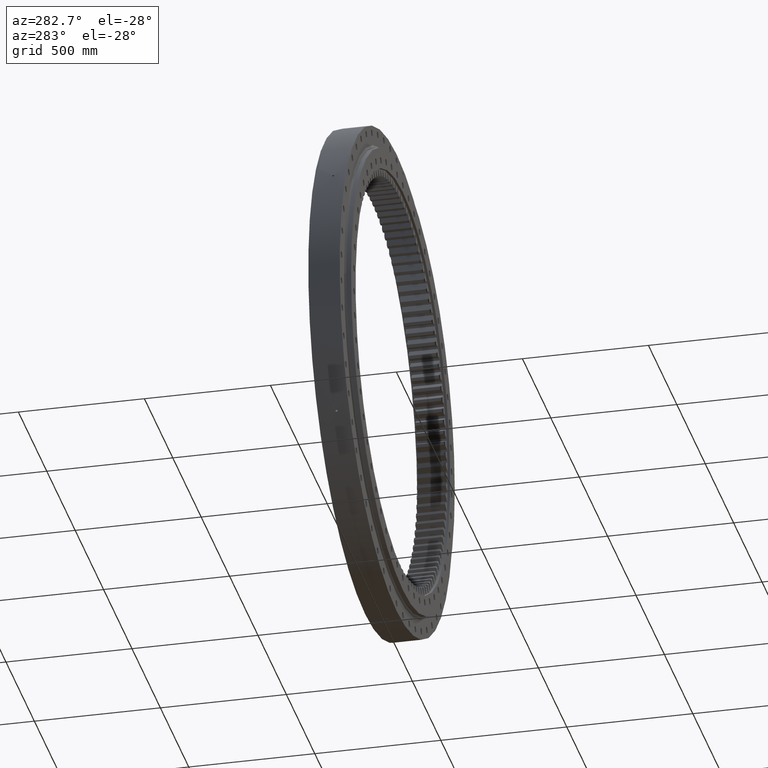
[diagram: clean part render]
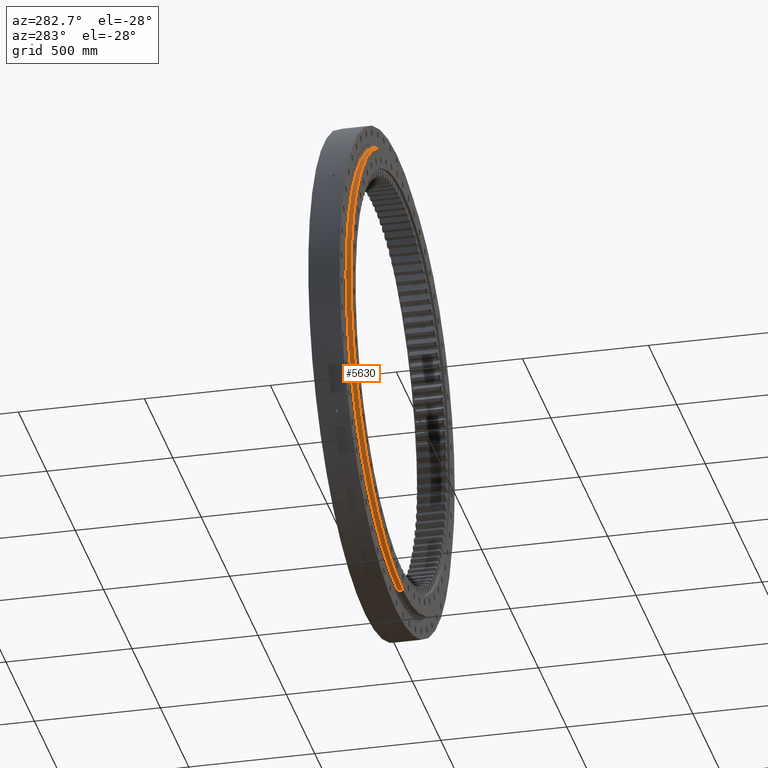
[diagram: same view with one face highlighted and labeled with its STEP entity id]
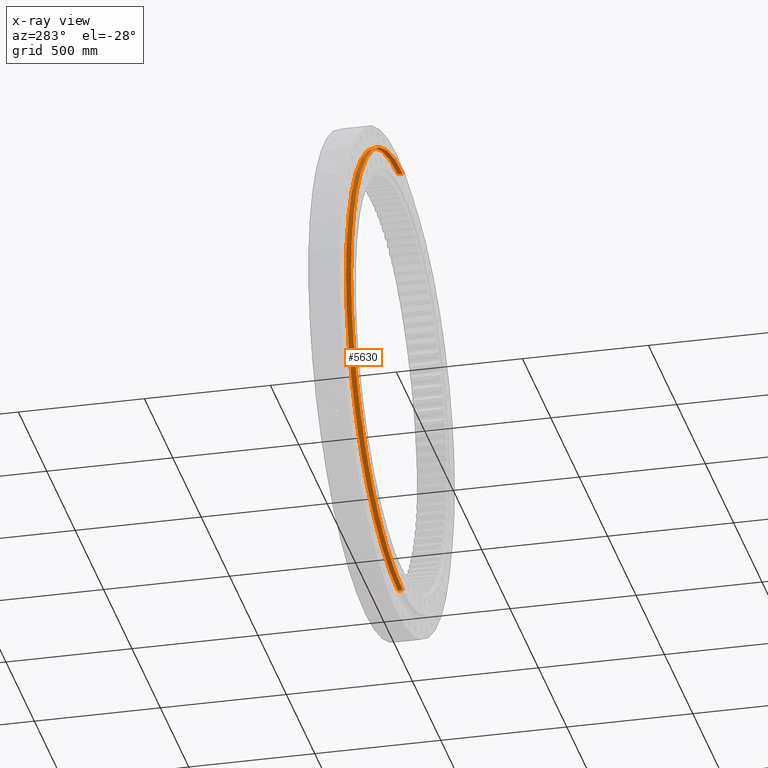
[diagram: x-ray of the same camera — body ghosted, the highlighted face saturated]
A machine part, auxiliary view. The second image highlights one B-rep face of the part: STEP entity #5630.
The next image is the same camera in x-ray: the body ghosted, the highlighted face saturated — about 0% of this face is hidden behind the body in this view.
In plain terms, the highlighted cylindrical surface (partial cylindrical patch) has radius 912.75 mm, axis along (-0, -1, 0).
Its self-contained STEP definition (entity closure, byte-faithful):
#115 = AXIS2_PLACEMENT_3D ( 'NONE', #31681, #30735, #7095 ) ;
#1879 = CARTESIAN_POINT ( 'NONE',  ( 4.631076708411159500E-014, -55.04999999999991200, 912.7500000000000000 ) ) ;
#3926 = EDGE_CURVE ( 'NONE', #24942, #35309, #7954, .T. ) ;
#4128 = VERTEX_POINT ( 'NONE', #31214 ) ;
#4173 = FACE_OUTER_BOUND ( 'NONE', #12693, .T. ) ;
#4995 = DIRECTION ( 'NONE',  ( 5.551115123125783900E-017, 6.461856826426890800E-017, 1.000000000000000000 ) ) ;
#5211 = ORIENTED_EDGE ( 'NONE', *, *, #21266, .F. ) ;
#5630 = ADVANCED_FACE ( 'NONE', ( #4173 ), #24309, .T. ) ;
#7095 = DIRECTION ( 'NONE',  ( 5.551115123125782700E-017, -8.362402951846563900E-017, 1.000000000000000000 ) ) ;
#7954 = CIRCLE ( 'NONE', #115, 912.7500000000000000 ) ;
#11758 = VECTOR ( 'NONE', #23372, 1000.000000000000000 ) ;
#12693 = EDGE_LOOP ( 'NONE', ( #21155, #18412, #5211, #31009 ) ) ;
#12963 = VECTOR ( 'NONE', #28617, 1000.000000000000000 ) ;
#12998 = CARTESIAN_POINT ( 'NONE',  ( -1.675939662917530000E-013, -55.04999999999975600, -912.7500000000000000 ) ) ;
#14811 = AXIS2_PLACEMENT_3D ( 'NONE', #15721, #34923, #18465 ) ;
#15721 = CARTESIAN_POINT ( 'NONE',  ( -5.936016624276557300E-015, -74.99999999999991500, 4.117057046502522500E-015 ) ) ;
#17167 = VERTEX_POINT ( 'NONE', #29612 ) ;
#18412 = ORIENTED_EDGE ( 'NONE', *, *, #34659, .T. ) ;
#18465 = DIRECTION ( 'NONE',  ( 5.551115123125783900E-017, 6.081747601342955700E-017, 1.000000000000000000 ) ) ;
#19012 = LINE ( 'NONE', #34300, #11758 ) ;
#20246 = LINE ( 'NONE', #23124, #12963 ) ;
#20463 = CARTESIAN_POINT ( 'NONE',  ( -2.455857209542285700E-015, -31.02910628019324300, 1.207215257623294400E-015 ) ) ;
#21155 = ORIENTED_EDGE ( 'NONE', *, *, #3926, .T. ) ;
#21266 = EDGE_CURVE ( 'NONE', #4128, #17167, #24969, .T. ) ;
#23124 = CARTESIAN_POINT ( 'NONE',  ( 4.821194607678830800E-014, -31.02910628019318700, 912.7500000000000000 ) ) ;
#23372 = DIRECTION ( 'NONE',  ( -7.914688832368751900E-017, -1.000000000000000000, 6.617654413443253200E-017 ) ) ;
#24309 = CYLINDRICAL_SURFACE ( 'NONE', #32823, 912.7500000000000000 ) ;
#24638 = DIRECTION ( 'NONE',  ( -7.914688832368751900E-017, -1.000000000000000000, 6.617654413443253200E-017 ) ) ;
#24942 = VERTEX_POINT ( 'NONE', #1879 ) ;
#24969 = CIRCLE ( 'NONE', #14811, 912.7500000000000000 ) ;
#27857 = EDGE_CURVE ( 'NONE', #24942, #4128, #20246, .T. ) ;
#28617 = DIRECTION ( 'NONE',  ( -7.914688832368751900E-017, -1.000000000000000000, 6.617654413443253200E-017 ) ) ;
#29612 = CARTESIAN_POINT ( 'NONE',  ( -1.675939662917530300E-013, -74.99999999999997200, -912.7500000000000000 ) ) ;
#30735 = DIRECTION ( 'NONE',  ( -7.914688832368753200E-017, -1.000000000000000000, -8.358676977426495800E-017 ) ) ;
#31009 = ORIENTED_EDGE ( 'NONE', *, *, #27857, .F. ) ;
#31214 = CARTESIAN_POINT ( 'NONE',  ( 4.473178666205403500E-014, -74.99999999999985800, 912.7500000000000000 ) ) ;
#31681 = CARTESIAN_POINT ( 'NONE',  ( -4.357036202218985400E-015, -55.04999999999983400, -1.999366462108062200E-015 ) ) ;
#32823 = AXIS2_PLACEMENT_3D ( 'NONE', #20463, #24638, #4995 ) ;
#34300 = CARTESIAN_POINT ( 'NONE',  ( -1.649032970880475400E-013, -31.02910628019330400, -912.7500000000000000 ) ) ;
#34659 = EDGE_CURVE ( 'NONE', #35309, #17167, #19012, .T. ) ;
#34923 = DIRECTION ( 'NONE',  ( -7.914688832368751900E-017, -1.000000000000000000, 6.617654413443253200E-017 ) ) ;
#35309 = VERTEX_POINT ( 'NONE', #12998 ) ;